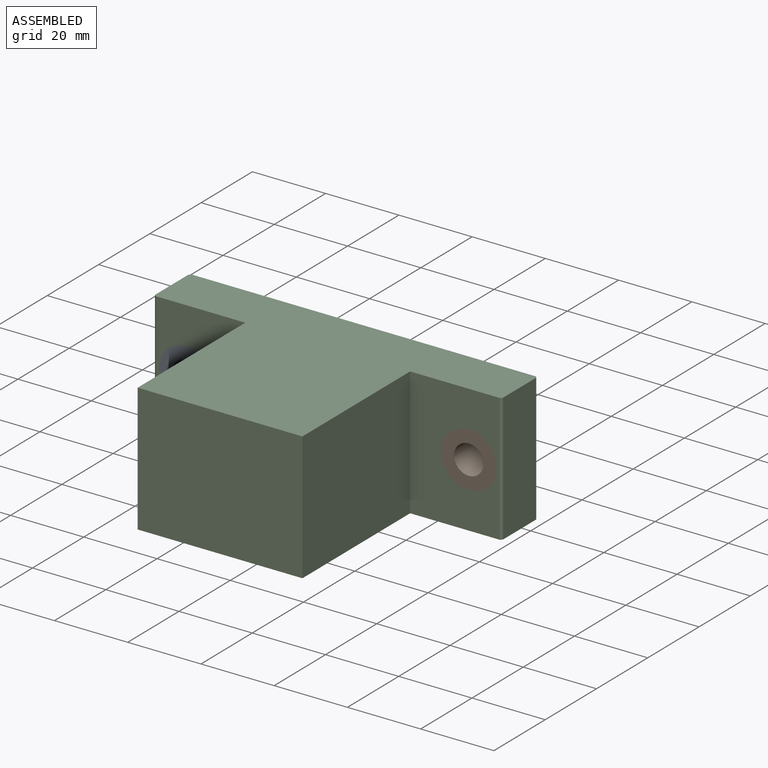
[diagram: assembled view]
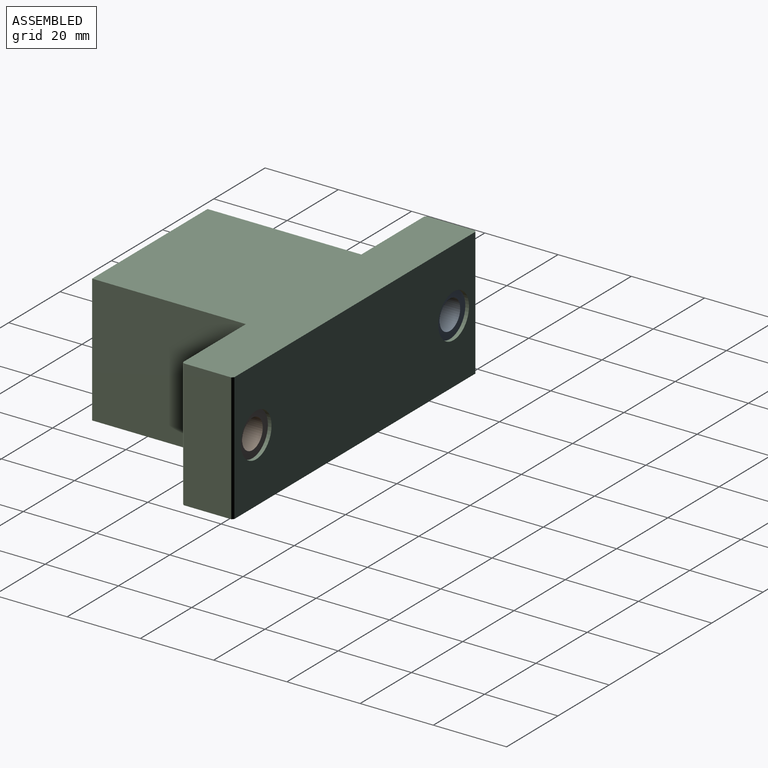
[diagram: assembled view, second angle]
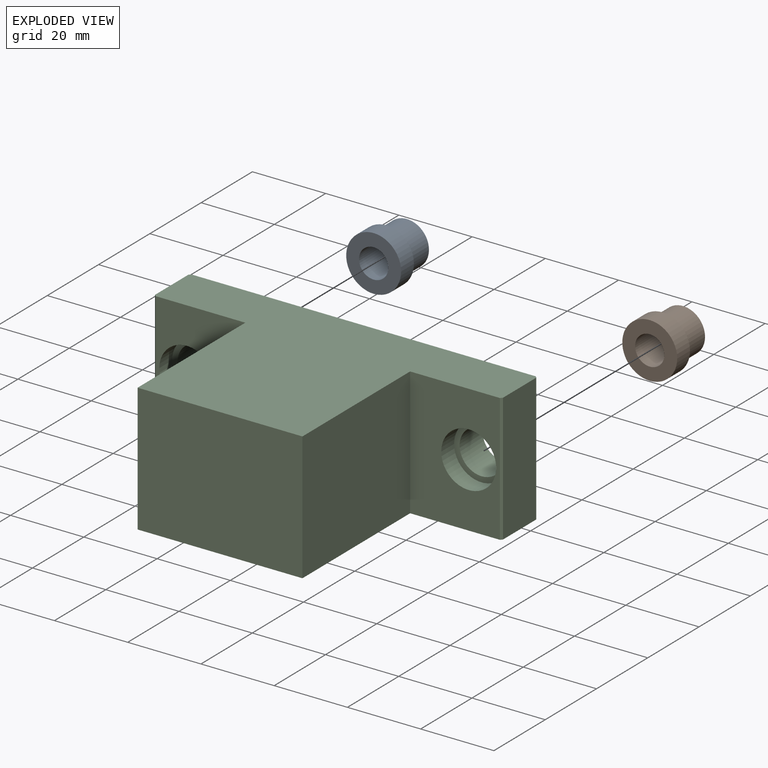
[diagram: exploded view]
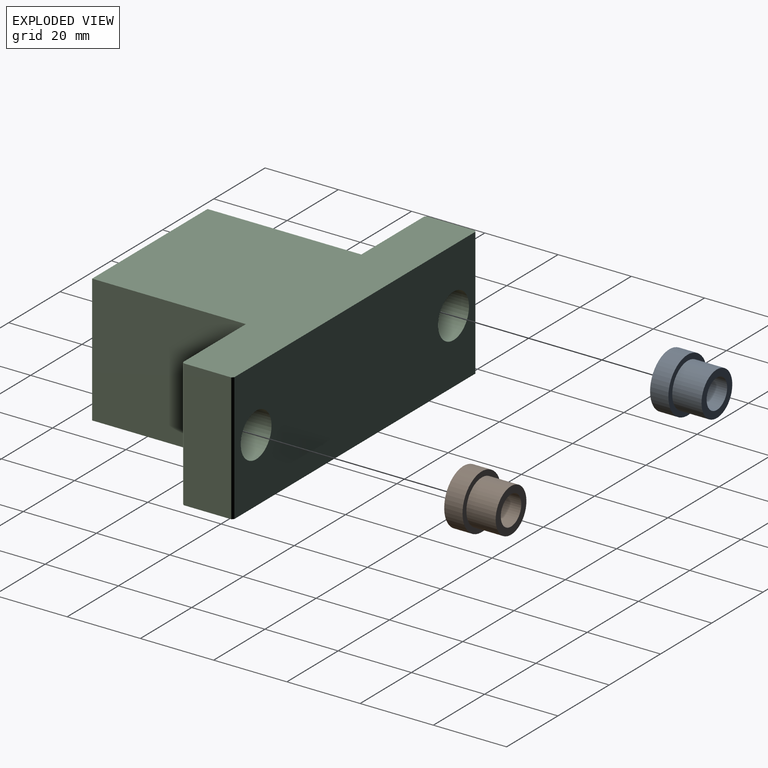
[diagram: exploded view, second angle]
ASSEMBLY  parts=3 mates=4
PART A: 6 faces, bbox 15x13x15 mm
  f0: cylinder r=6mm len=12mm, axis (0,1,0), area 301.6mm2, adj f1,f3
  f1: plane 12x12mm, normal (0,1,0), area 62.8mm2, adj f0,f5
  f2: cylinder r=7.5mm len=15mm, axis (0,-1,0), area 235.6mm2, adj f3,f4
  f3: plane 15x15mm, normal (0,1,0), area 63.6mm2, adj f0,f2
  f4: plane 15x15mm, normal (0,-1,0), area 126.4mm2, adj f2,f5
  f5: cylinder r=4mm len=13mm, axis (0,-1,0), area 326.7mm2, adj f1,f4
PART B: same geometry as A
PART C: 20 faces, bbox 95x56x35 mm
  f0: cylinder r=6mm len=12mm, axis (0,-1,0), area 339.3mm2, adj f7,f12
  f1: plane 35x24.5mm, normal (0,-1,0), area 680.8mm2, adj f3,f5,f8,f14,f18
  f2: plane 35x13mm, normal (-1,0,0), area 455mm2, adj f3,f5,f17,f19
  f3: plane 95x56mm, normal (0,0,-1), area 3219.5mm2, adj f1,f2,f4,f6,f7,f8,f9,f10
  f4: plane 35x13mm, normal (1,0,0), area 455mm2, adj f3,f5,f16,f18
  f5: plane 95x56mm, normal (0,0,1), area 3219.5mm2, adj f1,f2,f4,f6,f7,f8,f9,f10
  f6: plane 35x24.5mm, normal (0,-1,0), area 680.8mm2, adj f3,f5,f9,f13,f19
  f7: plane 94x35mm, normal (0,1,0), area 3063.8mm2, adj f0,f3,f5,f11,f16,f17
  f8: plane 42x35mm, normal (1,0,0), area 1470mm2, adj f1,f3,f5,f10
  f9: plane 42x35mm, normal (-1,0,0), area 1470mm2, adj f3,f5,f6,f10
  f10: plane 45x35mm, normal (0,-1,0), area 1575mm2, adj f3,f5,f8,f9
  f11: cylinder r=6mm len=12mm, axis (0,-1,0), area 339.3mm2, adj f7,f15
  f12: plane 15x15mm, normal (0,-1,0), area 63.6mm2, adj f0,f13
  f13: cylinder r=7.5mm len=15mm, axis (0,-1,0), area 235.6mm2, adj f6,f12
  f14: cylinder r=7.5mm len=15mm, axis (0,-1,0), area 235.6mm2, adj f1,f15
  f15: plane 15x15mm, normal (0,-1,0), area 63.6mm2, adj f11,f14
  f16: plane 35x0.5mm, normal (0.71,0.71,0), area 24.7mm2, adj f3,f4,f5,f7
  f17: plane 35x0.5mm, normal (-0.71,0.71,0), area 24.7mm2, adj f2,f3,f5,f7
  f18: plane 35x0.5mm, normal (0.71,-0.71,0), area 24.7mm2, adj f1,f3,f4,f5
  f19: plane 35x0.5mm, normal (-0.71,-0.71,0), area 24.7mm2, adj f2,f3,f5,f6
PLACE A t=(-26.28,22.11,22.03)mm
PLACE B t=(50.72,22.11,22.03)mm
PLACE C t=(5.41,23.11,19.92)mm
MATE planar B.f0 <-> C.f11  axis (0,1,0) through (50.72,14.11,22.03)mm
MATE cylindrical A.f0 <-> C.f0  axis (0,1,0) through (-26.28,22.11,22.03)mm
MATE cylindrical B.f0 <-> C.f11  axis (0,1,0) through (50.72,14.11,22.03)mm
MATE planar A.f0 <-> C.f0  axis (0,1,0) through (-26.28,14.11,22.03)mm
